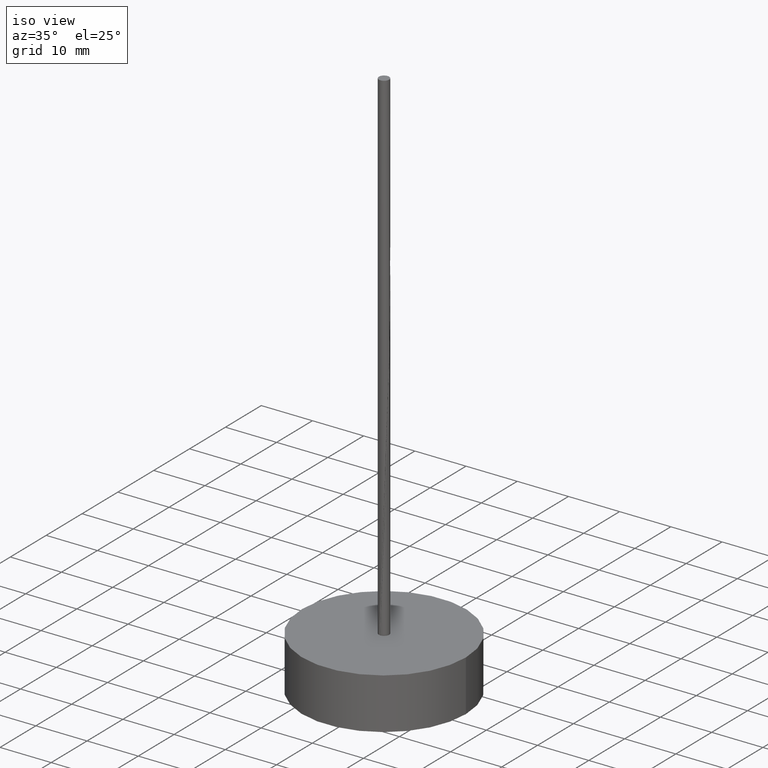
[diagram: clean part render]
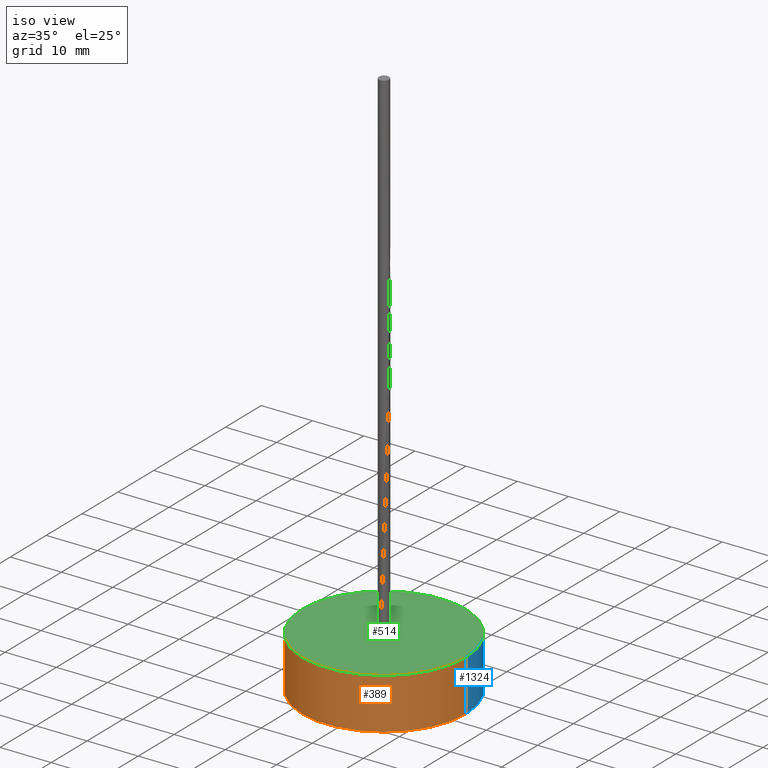
[diagram: same view with three faces highlighted in distinct colors, each labeled with its STEP entity id]
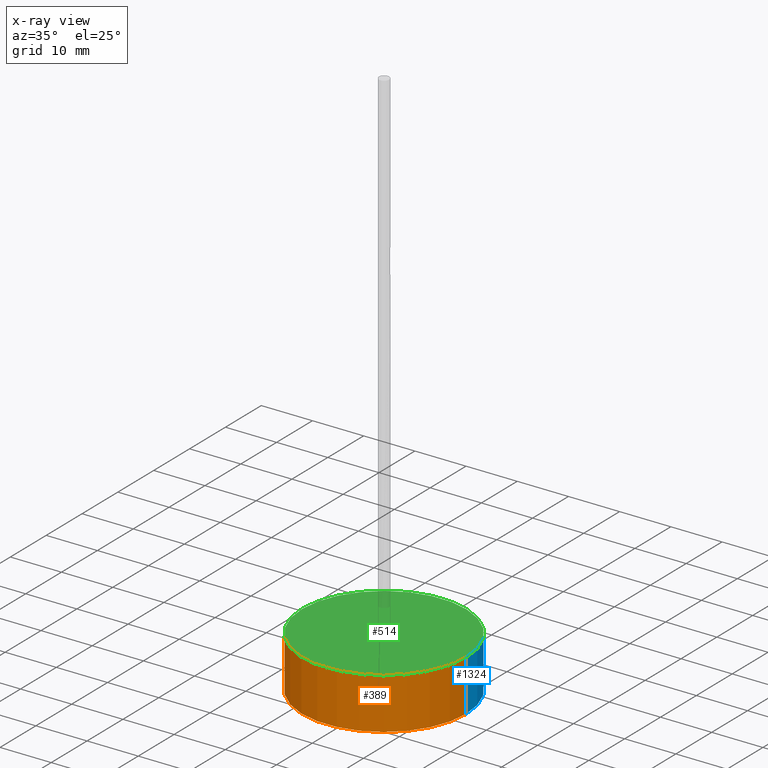
[diagram: x-ray of the same camera — body ghosted, the three highlighted faces saturated]
A machine part, iso view with three faces highlighted in distinct colors.
The next image is the same camera in x-ray (body ghosted, the three faces saturated) — at least one of them is partly hidden behind the body in this view.
Their STEP definitions:

[orange] entity #389 — the highlighted cylindrical surface (partial cylindrical patch) has radius 16 mm, axis along (-0, -0, -1).
#89 = CARTESIAN_POINT ( 'NONE',  ( -16.00000000000000000, 0.000000000000000000, 10.00000000000000000 ) ) ;
#193 = CYLINDRICAL_SURFACE ( 'NONE', #254, 16.00000000000000000 ) ;
#254 = AXIS2_PLACEMENT_3D ( 'NONE', #1675, #1383, #1088 ) ;
#385 = DIRECTION ( 'NONE',  ( -0.000000000000000000, -0.000000000000000000, -1.000000000000000000 ) ) ;
#389 = ADVANCED_FACE ( 'NONE', ( #1815 ), #193, .T. ) ;
#400 = VERTEX_POINT ( 'NONE', #1510 ) ;
#524 = CIRCLE ( 'NONE', #1594, 16.00000000000000000 ) ;
#664 = DIRECTION ( 'NONE',  ( 1.000000000000000000, 0.000000000000000000, 0.000000000000000000 ) ) ;
#677 = VERTEX_POINT ( 'NONE', #990 ) ;
#691 = DIRECTION ( 'NONE',  ( 0.000000000000000000, 0.000000000000000000, 1.000000000000000000 ) ) ;
#697 = VERTEX_POINT ( 'NONE', #1306 ) ;
#701 = DIRECTION ( 'NONE',  ( -0.000000000000000000, -0.000000000000000000, -1.000000000000000000 ) ) ;
#711 = ORIENTED_EDGE ( 'NONE', *, *, #1946, .F. ) ;
#768 = VECTOR ( 'NONE', #701, 1000.000000000000000 ) ;
#843 = DIRECTION ( 'NONE',  ( 1.000000000000000000, 0.000000000000000000, 0.000000000000000000 ) ) ;
#862 = VERTEX_POINT ( 'NONE', #1140 ) ;
#892 = CIRCLE ( 'NONE', #1721, 16.00000000000000000 ) ;
#948 = DIRECTION ( 'NONE',  ( 0.000000000000000000, 0.000000000000000000, 1.000000000000000000 ) ) ;
#990 = CARTESIAN_POINT ( 'NONE',  ( -16.00000000000000000, 0.000000000000000000, 0.000000000000000000 ) ) ;
#1003 = ORIENTED_EDGE ( 'NONE', *, *, #1479, .T. ) ;
#1062 = EDGE_CURVE ( 'NONE', #862, #697, #1572, .T. ) ;
#1088 = DIRECTION ( 'NONE',  ( -1.000000000000000000, 0.000000000000000000, 0.000000000000000000 ) ) ;
#1135 = ORIENTED_EDGE ( 'NONE', *, *, #1458, .T. ) ;
#1140 = CARTESIAN_POINT ( 'NONE',  ( 16.00000000000000000, 1.959434878635765131E-15, 10.00000000000000000 ) ) ;
#1294 = CARTESIAN_POINT ( 'NONE',  ( 0.000000000000000000, 0.000000000000000000, 0.000000000000000000 ) ) ;
#1306 = CARTESIAN_POINT ( 'NONE',  ( 16.00000000000000000, 1.959434878635765131E-15, 0.000000000000000000 ) ) ;
#1383 = DIRECTION ( 'NONE',  ( -0.000000000000000000, -0.000000000000000000, -1.000000000000000000 ) ) ;
#1439 = LINE ( 'NONE', #89, #768 ) ;
#1453 = EDGE_LOOP ( 'NONE', ( #1737, #711, #1003, #1135 ) ) ;
#1458 = EDGE_CURVE ( 'NONE', #677, #697, #524, .T. ) ;
#1479 = EDGE_CURVE ( 'NONE', #400, #677, #1439, .T. ) ;
#1510 = CARTESIAN_POINT ( 'NONE',  ( -16.00000000000000000, 0.000000000000000000, 10.00000000000000000 ) ) ;
#1532 = CARTESIAN_POINT ( 'NONE',  ( 0.000000000000000000, 0.000000000000000000, 10.00000000000000000 ) ) ;
#1572 = LINE ( 'NONE', #1583, #1817 ) ;
#1583 = CARTESIAN_POINT ( 'NONE',  ( 16.00000000000000000, 1.959434878635765131E-15, 10.00000000000000000 ) ) ;
#1594 = AXIS2_PLACEMENT_3D ( 'NONE', #1294, #691, #843 ) ;
#1675 = CARTESIAN_POINT ( 'NONE',  ( 0.000000000000000000, 0.000000000000000000, 10.00000000000000000 ) ) ;
#1721 = AXIS2_PLACEMENT_3D ( 'NONE', #1532, #948, #664 ) ;
#1737 = ORIENTED_EDGE ( 'NONE', *, *, #1062, .F. ) ;
#1815 = FACE_OUTER_BOUND ( 'NONE', #1453, .T. ) ;
#1817 = VECTOR ( 'NONE', #385, 1000.000000000000000 ) ;
#1946 = EDGE_CURVE ( 'NONE', #400, #862, #892, .T. ) ;

[blue] entity #1324 — the highlighted cylindrical surface (partial cylindrical patch) has radius 16 mm, axis along (-0, -0, -1).
#32 = CIRCLE ( 'NONE', #616, 16.00000000000000000 ) ;
#78 = DIRECTION ( 'NONE',  ( 1.000000000000000000, 0.000000000000000000, 0.000000000000000000 ) ) ;
#89 = CARTESIAN_POINT ( 'NONE',  ( -16.00000000000000000, 0.000000000000000000, 10.00000000000000000 ) ) ;
#214 = ORIENTED_EDGE ( 'NONE', *, *, #1062, .T. ) ;
#241 = DIRECTION ( 'NONE',  ( 0.000000000000000000, 0.000000000000000000, 1.000000000000000000 ) ) ;
#385 = DIRECTION ( 'NONE',  ( -0.000000000000000000, -0.000000000000000000, -1.000000000000000000 ) ) ;
#400 = VERTEX_POINT ( 'NONE', #1510 ) ;
#554 = AXIS2_PLACEMENT_3D ( 'NONE', #1424, #684, #1285 ) ;
#563 = ORIENTED_EDGE ( 'NONE', *, *, #1479, .F. ) ;
#565 = DIRECTION ( 'NONE',  ( 0.000000000000000000, 0.000000000000000000, 1.000000000000000000 ) ) ;
#616 = AXIS2_PLACEMENT_3D ( 'NONE', #1121, #241, #985 ) ;
#677 = VERTEX_POINT ( 'NONE', #990 ) ;
#684 = DIRECTION ( 'NONE',  ( -0.000000000000000000, -0.000000000000000000, -1.000000000000000000 ) ) ;
#697 = VERTEX_POINT ( 'NONE', #1306 ) ;
#701 = DIRECTION ( 'NONE',  ( -0.000000000000000000, -0.000000000000000000, -1.000000000000000000 ) ) ;
#768 = VECTOR ( 'NONE', #701, 1000.000000000000000 ) ;
#801 = CIRCLE ( 'NONE', #1113, 16.00000000000000000 ) ;
#862 = VERTEX_POINT ( 'NONE', #1140 ) ;
#985 = DIRECTION ( 'NONE',  ( 1.000000000000000000, 0.000000000000000000, 0.000000000000000000 ) ) ;
#990 = CARTESIAN_POINT ( 'NONE',  ( -16.00000000000000000, 0.000000000000000000, 0.000000000000000000 ) ) ;
#1032 = ORIENTED_EDGE ( 'NONE', *, *, #1351, .T. ) ;
#1062 = EDGE_CURVE ( 'NONE', #862, #697, #1572, .T. ) ;
#1113 = AXIS2_PLACEMENT_3D ( 'NONE', #1882, #565, #78 ) ;
#1121 = CARTESIAN_POINT ( 'NONE',  ( 0.000000000000000000, 0.000000000000000000, 10.00000000000000000 ) ) ;
#1140 = CARTESIAN_POINT ( 'NONE',  ( 16.00000000000000000, 1.959434878635765131E-15, 10.00000000000000000 ) ) ;
#1155 = ORIENTED_EDGE ( 'NONE', *, *, #1171, .F. ) ;
#1161 = CYLINDRICAL_SURFACE ( 'NONE', #554, 16.00000000000000000 ) ;
#1171 = EDGE_CURVE ( 'NONE', #862, #400, #32, .T. ) ;
#1285 = DIRECTION ( 'NONE',  ( -1.000000000000000000, 0.000000000000000000, 0.000000000000000000 ) ) ;
#1306 = CARTESIAN_POINT ( 'NONE',  ( 16.00000000000000000, 1.959434878635765131E-15, 0.000000000000000000 ) ) ;
#1324 = ADVANCED_FACE ( 'NONE', ( #1892 ), #1161, .T. ) ;
#1351 = EDGE_CURVE ( 'NONE', #697, #677, #801, .T. ) ;
#1424 = CARTESIAN_POINT ( 'NONE',  ( 0.000000000000000000, 0.000000000000000000, 10.00000000000000000 ) ) ;
#1439 = LINE ( 'NONE', #89, #768 ) ;
#1479 = EDGE_CURVE ( 'NONE', #400, #677, #1439, .T. ) ;
#1510 = CARTESIAN_POINT ( 'NONE',  ( -16.00000000000000000, 0.000000000000000000, 10.00000000000000000 ) ) ;
#1572 = LINE ( 'NONE', #1583, #1817 ) ;
#1583 = CARTESIAN_POINT ( 'NONE',  ( 16.00000000000000000, 1.959434878635765131E-15, 10.00000000000000000 ) ) ;
#1805 = EDGE_LOOP ( 'NONE', ( #1155, #214, #1032, #563 ) ) ;
#1817 = VECTOR ( 'NONE', #385, 1000.000000000000000 ) ;
#1882 = CARTESIAN_POINT ( 'NONE',  ( 0.000000000000000000, 0.000000000000000000, 0.000000000000000000 ) ) ;
#1892 = FACE_OUTER_BOUND ( 'NONE', #1805, .T. ) ;

[green] entity #514 — the highlighted planar face has unit normal (0, 0, 1).
#32 = CIRCLE ( 'NONE', #616, 16.00000000000000000 ) ;
#50 = CARTESIAN_POINT ( 'NONE',  ( -0.2659210267917466730, -0.9674610618680483665, 10.00000000000000355 ) ) ;
#64 = EDGE_CURVE ( 'NONE', #1772, #1577, #262, .T. ) ;
#68 = CARTESIAN_POINT ( 'NONE',  ( 1.000000000000000000, 1.224646799147353207E-16, 10.00000000000000000 ) ) ;
#82 = CARTESIAN_POINT ( 'NONE',  ( 0.000000000000000000, 0.000000000000000000, 10.00000000000000000 ) ) ;
#92 = DIRECTION ( 'NONE',  ( 1.000000000000000000, 0.000000000000000000, -0.000000000000000000 ) ) ;
#96 = CARTESIAN_POINT ( 'NONE',  ( -0.2661982449394020844, -0.9690915820453617213, 10.00000000000000533 ) ) ;
#105 = DIRECTION ( 'NONE',  ( 0.000000000000000000, 0.000000000000000000, 1.000000000000000000 ) ) ;
#120 = CIRCLE ( 'NONE', #885, 1.000000000000000000 ) ;
#157 = CARTESIAN_POINT ( 'NONE',  ( -0.2656011466207492400, -0.9658243822596200845, 10.00000000000000533 ) ) ;
#162 = DIRECTION ( 'NONE',  ( 1.000000000000000000, 0.000000000000000000, 0.000000000000000000 ) ) ;
#181 = ORIENTED_EDGE ( 'NONE', *, *, #1171, .T. ) ;
#240 = VERTEX_POINT ( 'NONE', #96 ) ;
#241 = DIRECTION ( 'NONE',  ( 0.000000000000000000, 0.000000000000000000, 1.000000000000000000 ) ) ;
#262 =( BOUNDED_CURVE ( )  B_SPLINE_CURVE ( 3, ( #1848, #987, #548, #521 ),
 .UNSPECIFIED., .F., .T. ) 
 B_SPLINE_CURVE_WITH_KNOTS ( ( 4, 4 ),
 ( 0.0003076460130569710471, 0.0003125815415366641251 ),
 .UNSPECIFIED. ) 
 CURVE ( )  GEOMETRIC_REPRESENTATION_ITEM ( )  RATIONAL_B_SPLINE_CURVE ( ( 0.9519877378468030171, 0.9674572903630255238, 0.9833237526605377310, 0.9995871247393397496 ) ) 
 REPRESENTATION_ITEM ( '' )  );
#364 = EDGE_CURVE ( 'NONE', #992, #1888, #1646, .T. ) ;
#380 = PLANE ( 'NONE',  #1105 ) ;
#391 = EDGE_LOOP ( 'NONE', ( #873, #181 ) ) ;
#400 = VERTEX_POINT ( 'NONE', #1510 ) ;
#416 = FACE_BOUND ( 'NONE', #802, .T. ) ;
#422 = EDGE_CURVE ( 'NONE', #1772, #992, #821, .T. ) ;
#486 = CARTESIAN_POINT ( 'NONE',  ( -0.06831291332715047626, -0.9976639443583983358, 10.00000000000000888 ) ) ;
#514 = ADVANCED_FACE ( 'NONE', ( #1297, #416 ), #380, .T. ) ;
#521 = CARTESIAN_POINT ( 'NONE',  ( -0.06902766938706499100, -1.002614173478008519, 10.00000000000000533 ) ) ;
#523 = ORIENTED_EDGE ( 'NONE', *, *, #880, .T. ) ;
#541 = DIRECTION ( 'NONE',  ( 0.000000000000000000, 0.000000000000000000, 1.000000000000000000 ) ) ;
#548 = CARTESIAN_POINT ( 'NONE',  ( -0.06875045123991881113, -1.000983653303690213, 10.00000000000000533 ) ) ;
#605 = CARTESIAN_POINT ( 'NONE',  ( -0.06902766938706499100, -1.002614173478008519, 10.00000000000000533 ) ) ;
#616 = AXIS2_PLACEMENT_3D ( 'NONE', #1121, #241, #985 ) ;
#639 = AXIS2_PLACEMENT_3D ( 'NONE', #1739, #105, #1066 ) ;
#664 = DIRECTION ( 'NONE',  ( 1.000000000000000000, 0.000000000000000000, 0.000000000000000000 ) ) ;
#673 = CARTESIAN_POINT ( 'NONE',  ( -0.2661982449394020844, -0.9690915820453617213, 10.00000000000000533 ) ) ;
#710 = EDGE_CURVE ( 'NONE', #1888, #1556, #120, .T. ) ;
#787 = CARTESIAN_POINT ( 'NONE',  ( -0.2652368714276842065, -0.9641832823873551783, 10.00000000000000178 ) ) ;
#802 = EDGE_LOOP ( 'NONE', ( #523, #1948, #1006, #1172, #1827, #1724 ) ) ;
#821 = CIRCLE ( 'NONE', #980, 1.000000000000000000 ) ;
#853 = CARTESIAN_POINT ( 'NONE',  ( -0.06902766938706499100, -1.002614173478008519, 10.00000000000000533 ) ) ;
#862 = VERTEX_POINT ( 'NONE', #1140 ) ;
#864 =( BOUNDED_CURVE ( )  B_SPLINE_CURVE ( 1, ( #853, #673 ),
 .UNSPECIFIED., .F., .T. ) 
 B_SPLINE_CURVE_WITH_KNOTS ( ( 2, 2 ),
 ( 0.000000000000000000, 0.0002000000000000000909 ),
 .UNSPECIFIED. ) 
 CURVE ( )  GEOMETRIC_REPRESENTATION_ITEM ( )  RATIONAL_B_SPLINE_CURVE ( ( 0.9995871247393397496, 0.9995871247393397496 ) ) 
 REPRESENTATION_ITEM ( '' )  );
#873 = ORIENTED_EDGE ( 'NONE', *, *, #1946, .T. ) ;
#880 = EDGE_CURVE ( 'NONE', #1577, #240, #864, .T. ) ;
#885 = AXIS2_PLACEMENT_3D ( 'NONE', #82, #1885, #1133 ) ;
#892 = CIRCLE ( 'NONE', #1721, 16.00000000000000000 ) ;
#923 = CARTESIAN_POINT ( 'NONE',  ( 0.000000000000000000, 0.000000000000000000, 10.00000000000000000 ) ) ;
#948 = DIRECTION ( 'NONE',  ( 0.000000000000000000, 0.000000000000000000, 1.000000000000000000 ) ) ;
#980 = AXIS2_PLACEMENT_3D ( 'NONE', #923, #1058, #162 ) ;
#985 = DIRECTION ( 'NONE',  ( 1.000000000000000000, 0.000000000000000000, 0.000000000000000000 ) ) ;
#987 = CARTESIAN_POINT ( 'NONE',  ( -0.06851146242344713366, -0.9993332206938134732, 10.00000000000000533 ) ) ;
#992 = VERTEX_POINT ( 'NONE', #68 ) ;
#1006 = ORIENTED_EDGE ( 'NONE', *, *, #710, .F. ) ;
#1058 = DIRECTION ( 'NONE',  ( 0.000000000000000000, 0.000000000000000000, 1.000000000000000000 ) ) ;
#1066 = DIRECTION ( 'NONE',  ( 1.000000000000000000, 0.000000000000000000, 0.000000000000000000 ) ) ;
#1105 = AXIS2_PLACEMENT_3D ( 'NONE', #1575, #541, #92 ) ;
#1121 = CARTESIAN_POINT ( 'NONE',  ( 0.000000000000000000, 0.000000000000000000, 10.00000000000000000 ) ) ;
#1133 = DIRECTION ( 'NONE',  ( 1.000000000000000000, 0.000000000000000000, 0.000000000000000000 ) ) ;
#1138 =( BOUNDED_CURVE ( )  B_SPLINE_CURVE ( 3, ( #1798, #50, #157, #787 ),
 .UNSPECIFIED., .F., .T. ) 
 B_SPLINE_CURVE_WITH_KNOTS ( ( 4, 4 ),
 ( 0.000000000000000000, 4.950031193608742259E-06 ),
 .UNSPECIFIED. ) 
 CURVE ( )  GEOMETRIC_REPRESENTATION_ITEM ( )  RATIONAL_B_SPLINE_CURVE ( ( 0.9995871247393397496, 0.9833237526311534582, 0.9674572903056911644, 0.9519877377629528681 ) ) 
 REPRESENTATION_ITEM ( '' )  );
#1140 = CARTESIAN_POINT ( 'NONE',  ( 16.00000000000000000, 1.959434878635765131E-15, 10.00000000000000000 ) ) ;
#1171 = EDGE_CURVE ( 'NONE', #862, #400, #32, .T. ) ;
#1172 = ORIENTED_EDGE ( 'NONE', *, *, #364, .F. ) ;
#1193 = CARTESIAN_POINT ( 'NONE',  ( -0.2652368714276842065, -0.9641832823873551783, 10.00000000000000178 ) ) ;
#1297 = FACE_OUTER_BOUND ( 'NONE', #391, .T. ) ;
#1405 = CARTESIAN_POINT ( 'NONE',  ( -1.000000000000000000, 0.000000000000000000, 10.00000000000000000 ) ) ;
#1510 = CARTESIAN_POINT ( 'NONE',  ( -16.00000000000000000, 0.000000000000000000, 10.00000000000000000 ) ) ;
#1532 = CARTESIAN_POINT ( 'NONE',  ( 0.000000000000000000, 0.000000000000000000, 10.00000000000000000 ) ) ;
#1556 = VERTEX_POINT ( 'NONE', #1193 ) ;
#1575 = CARTESIAN_POINT ( 'NONE',  ( 0.000000000000000000, 0.000000000000000000, 10.00000000000000000 ) ) ;
#1577 = VERTEX_POINT ( 'NONE', #605 ) ;
#1646 = CIRCLE ( 'NONE', #639, 1.000000000000000000 ) ;
#1721 = AXIS2_PLACEMENT_3D ( 'NONE', #1532, #948, #664 ) ;
#1724 = ORIENTED_EDGE ( 'NONE', *, *, #64, .T. ) ;
#1734 = EDGE_CURVE ( 'NONE', #240, #1556, #1138, .T. ) ;
#1739 = CARTESIAN_POINT ( 'NONE',  ( 0.000000000000000000, 0.000000000000000000, 10.00000000000000000 ) ) ;
#1772 = VERTEX_POINT ( 'NONE', #486 ) ;
#1798 = CARTESIAN_POINT ( 'NONE',  ( -0.2661982449394020844, -0.9690915820453617213, 10.00000000000000533 ) ) ;
#1827 = ORIENTED_EDGE ( 'NONE', *, *, #422, .F. ) ;
#1848 = CARTESIAN_POINT ( 'NONE',  ( -0.06831291332715047626, -0.9976639443583983358, 10.00000000000000888 ) ) ;
#1885 = DIRECTION ( 'NONE',  ( 0.000000000000000000, 0.000000000000000000, 1.000000000000000000 ) ) ;
#1888 = VERTEX_POINT ( 'NONE', #1405 ) ;
#1946 = EDGE_CURVE ( 'NONE', #400, #862, #892, .T. ) ;
#1948 = ORIENTED_EDGE ( 'NONE', *, *, #1734, .T. ) ;